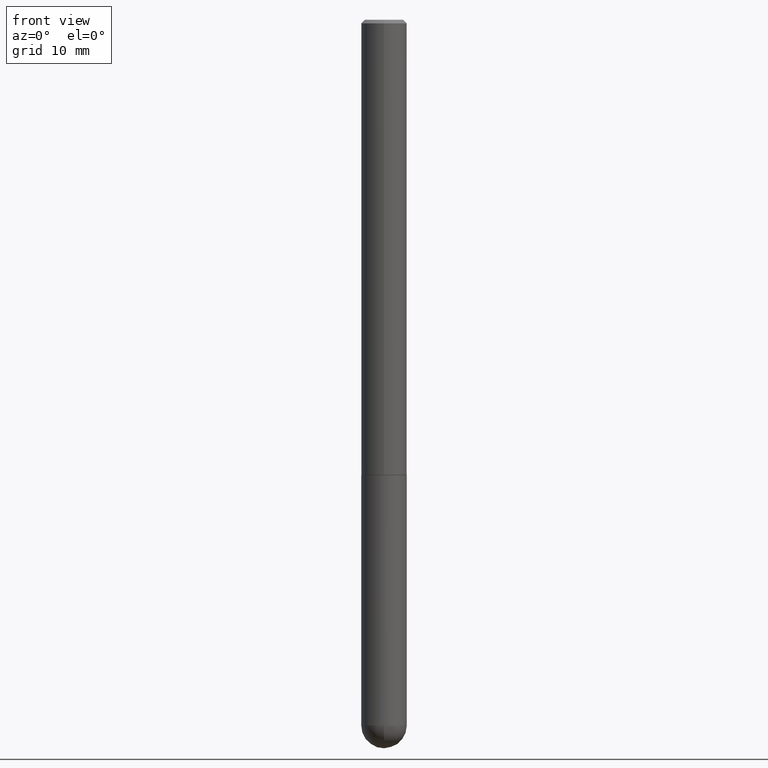
[diagram: clean part render]
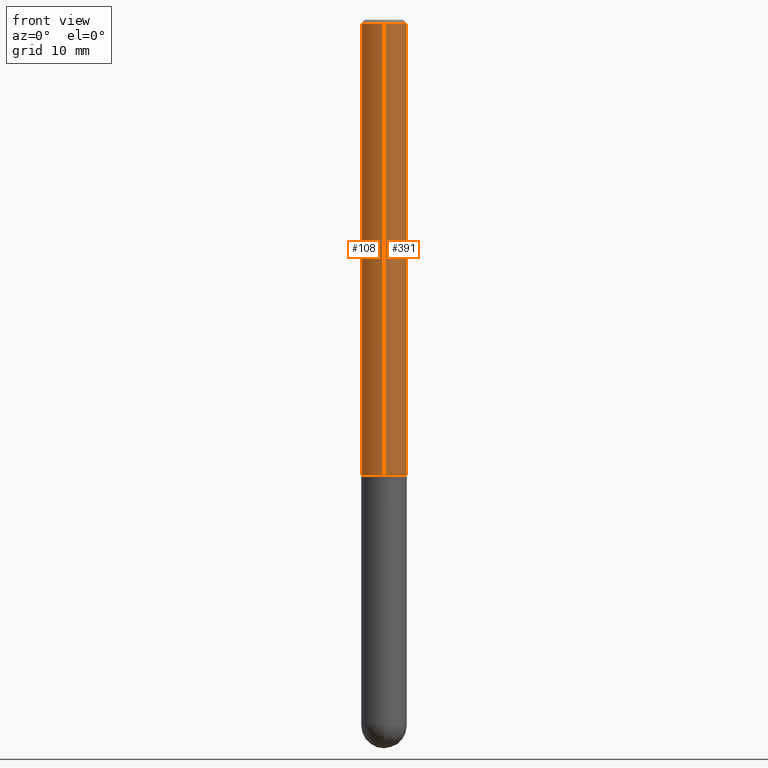
[diagram: same view with one multi-face feature highlighted, each face labeled with its STEP entity id]
A machine part, front view. The highlighted faces form ONE feature: a constant-radius fillet chain: 2 tangent blend faces with common blend radius 3.175 mm. The faces share edges in the B-rep.
Their STEP definitions:
[1] entity #108 (Cylinder):
#18 = ORIENTED_EDGE ( 'NONE', *, *, #161, .F. ) ;
#19 = LINE ( 'NONE', #86, #285 ) ;
#20 = ORIENTED_EDGE ( 'NONE', *, *, #348, .F. ) ;
#58 = VERTEX_POINT ( 'NONE', #381 ) ;
#86 = CARTESIAN_POINT ( 'NONE',  ( 8.881784197001262184E-16, 0.1250000000000001388, -4.364765541840276451E-16 ) ) ;
#92 = EDGE_CURVE ( 'NONE', #58, #143, #187, .T. ) ;
#96 = DIRECTION ( 'NONE',  ( -2.445237604041377810E-29, 3.491812433472216822E-15, 1.000000000000000000 ) ) ;
#108 = ADVANCED_FACE ( 'NONE', ( #159 ), #157, .T. ) ;
#129 = CARTESIAN_POINT ( 'NONE',  ( 4.890475208082762101E-31, -6.983624866944442273E-17, -0.02000000000000002470 ) ) ;
#133 = CARTESIAN_POINT ( 'NONE',  ( -8.575622497214408537E-16, -0.1250000000000000555, -0.01999999999999959102 ) ) ;
#143 = VERTEX_POINT ( 'NONE', #390 ) ;
#148 = EDGE_LOOP ( 'NONE', ( #20, #222, #170, #18 ) ) ;
#154 = VERTEX_POINT ( 'NONE', #165 ) ;
#157 = CYLINDRICAL_SURFACE ( 'NONE', #261, 0.1250000000000001388 ) ;
#159 = FACE_OUTER_BOUND ( 'NONE', #148, .T. ) ;
#161 = EDGE_CURVE ( 'NONE', #154, #242, #276, .T. ) ;
#165 = CARTESIAN_POINT ( 'NONE',  ( 8.728703347107837333E-16, 0.1249999999999999306, -0.02000000000000046185 ) ) ;
#170 = ORIENTED_EDGE ( 'NONE', *, *, #383, .T. ) ;
#184 = DIRECTION ( 'NONE',  ( -6.982962677686265922E-15, -1.000000000000000000, 4.370956789862810105E-15 ) ) ;
#187 = CIRCLE ( 'NONE', #214, 0.1250000000000003053 ) ;
#214 = AXIS2_PLACEMENT_3D ( 'NONE', #340, #96, #184 ) ;
#222 = ORIENTED_EDGE ( 'NONE', *, *, #92, .T. ) ;
#242 = VERTEX_POINT ( 'NONE', #133 ) ;
#261 = AXIS2_PLACEMENT_3D ( 'NONE', #303, #275, #345 ) ;
#275 = DIRECTION ( 'NONE',  ( -2.445237604041377810E-29, 3.491812433472216822E-15, 1.000000000000000000 ) ) ;
#276 = CIRCLE ( 'NONE', #410, 0.1250000000000000000 ) ;
#285 = VECTOR ( 'NONE', #355, 39.37007874015748143 ) ;
#294 = DIRECTION ( 'NONE',  ( -2.445237604041377530E-29, 3.491812433472216822E-15, 1.000000000000000000 ) ) ;
#303 = CARTESIAN_POINT ( 'NONE',  ( 0.000000000000000000, 0.000000000000000000, 0.000000000000000000 ) ) ;
#312 = DIRECTION ( 'NONE',  ( -2.445237604041377810E-29, 3.491812433472216822E-15, 1.000000000000000000 ) ) ;
#314 = DIRECTION ( 'NONE',  ( -6.982962677686265922E-15, -1.000000000000000000, 3.483106191921935554E-15 ) ) ;
#323 = CARTESIAN_POINT ( 'NONE',  ( -8.728703347107843249E-16, -0.1250000000000001388, 4.364765541840276451E-16 ) ) ;
#340 = CARTESIAN_POINT ( 'NONE',  ( 6.110648772499403782E-29, -8.726039271247070194E-15, -2.499000000000000110 ) ) ;
#345 = DIRECTION ( 'NONE',  ( -6.982962677686266711E-15, -1.000000000000000000, 3.491812433472217217E-15 ) ) ;
#348 = EDGE_CURVE ( 'NONE', #58, #154, #19, .T. ) ;
#355 = DIRECTION ( 'NONE',  ( -2.445237604041377530E-29, 3.491812433472216822E-15, 1.000000000000000000 ) ) ;
#360 = LINE ( 'NONE', #323, #388 ) ;
#381 = CARTESIAN_POINT ( 'NONE',  ( 8.881784197001575756E-16, 0.1249999999999915762, -2.499000000000000998 ) ) ;
#383 = EDGE_CURVE ( 'NONE', #143, #242, #360, .T. ) ;
#388 = VECTOR ( 'NONE', #294, 39.37007874015748143 ) ;
#390 = CARTESIAN_POINT ( 'NONE',  ( -8.728703347107242729E-16, -0.1250000000000090206, -2.498999999999999666 ) ) ;
#410 = AXIS2_PLACEMENT_3D ( 'NONE', #129, #312, #314 ) ;
[2] entity #391 (Cylinder):
#13 = DIRECTION ( 'NONE',  ( -2.445237604041377810E-29, 3.491812433472216822E-15, 1.000000000000000000 ) ) ;
#16 = CIRCLE ( 'NONE', #329, 0.1250000000000003053 ) ;
#19 = LINE ( 'NONE', #86, #285 ) ;
#40 = CIRCLE ( 'NONE', #173, 0.1250000000000000000 ) ;
#47 = CARTESIAN_POINT ( 'NONE',  ( 6.110648772499403782E-29, -8.726039271247070194E-15, -2.499000000000000110 ) ) ;
#58 = VERTEX_POINT ( 'NONE', #381 ) ;
#75 = DIRECTION ( 'NONE',  ( -6.982962677686265922E-15, -1.000000000000000000, 4.370956789862810105E-15 ) ) ;
#80 = ORIENTED_EDGE ( 'NONE', *, *, #383, .F. ) ;
#86 = CARTESIAN_POINT ( 'NONE',  ( 8.881784197001262184E-16, 0.1250000000000001388, -4.364765541840276451E-16 ) ) ;
#116 = ORIENTED_EDGE ( 'NONE', *, *, #130, .F. ) ;
#120 = DIRECTION ( 'NONE',  ( -2.445237604041377810E-29, 3.491812433472216822E-15, 1.000000000000000000 ) ) ;
#124 = CARTESIAN_POINT ( 'NONE',  ( 4.890475208082762101E-31, -6.983624866944442273E-17, -0.02000000000000002470 ) ) ;
#130 = EDGE_CURVE ( 'NONE', #242, #154, #40, .T. ) ;
#133 = CARTESIAN_POINT ( 'NONE',  ( -8.575622497214408537E-16, -0.1250000000000000555, -0.01999999999999959102 ) ) ;
#143 = VERTEX_POINT ( 'NONE', #390 ) ;
#145 = DIRECTION ( 'NONE',  ( -6.982962677686266711E-15, -1.000000000000000000, 3.491812433472217217E-15 ) ) ;
#154 = VERTEX_POINT ( 'NONE', #165 ) ;
#165 = CARTESIAN_POINT ( 'NONE',  ( 8.728703347107837333E-16, 0.1249999999999999306, -0.02000000000000046185 ) ) ;
#173 = AXIS2_PLACEMENT_3D ( 'NONE', #124, #120, #274 ) ;
#174 = FACE_OUTER_BOUND ( 'NONE', #268, .T. ) ;
#181 = AXIS2_PLACEMENT_3D ( 'NONE', #396, #13, #145 ) ;
#242 = VERTEX_POINT ( 'NONE', #133 ) ;
#260 = DIRECTION ( 'NONE',  ( -2.445237604041377810E-29, 3.491812433472216822E-15, 1.000000000000000000 ) ) ;
#268 = EDGE_LOOP ( 'NONE', ( #366, #342, #116, #80 ) ) ;
#274 = DIRECTION ( 'NONE',  ( -6.982962677686265922E-15, -1.000000000000000000, 3.483106191921935554E-15 ) ) ;
#285 = VECTOR ( 'NONE', #355, 39.37007874015748143 ) ;
#292 = CYLINDRICAL_SURFACE ( 'NONE', #181, 0.1250000000000001388 ) ;
#294 = DIRECTION ( 'NONE',  ( -2.445237604041377530E-29, 3.491812433472216822E-15, 1.000000000000000000 ) ) ;
#320 = EDGE_CURVE ( 'NONE', #143, #58, #16, .T. ) ;
#323 = CARTESIAN_POINT ( 'NONE',  ( -8.728703347107843249E-16, -0.1250000000000001388, 4.364765541840276451E-16 ) ) ;
#329 = AXIS2_PLACEMENT_3D ( 'NONE', #47, #260, #75 ) ;
#342 = ORIENTED_EDGE ( 'NONE', *, *, #348, .T. ) ;
#348 = EDGE_CURVE ( 'NONE', #58, #154, #19, .T. ) ;
#355 = DIRECTION ( 'NONE',  ( -2.445237604041377530E-29, 3.491812433472216822E-15, 1.000000000000000000 ) ) ;
#360 = LINE ( 'NONE', #323, #388 ) ;
#366 = ORIENTED_EDGE ( 'NONE', *, *, #320, .T. ) ;
#381 = CARTESIAN_POINT ( 'NONE',  ( 8.881784197001575756E-16, 0.1249999999999915762, -2.499000000000000998 ) ) ;
#383 = EDGE_CURVE ( 'NONE', #143, #242, #360, .T. ) ;
#388 = VECTOR ( 'NONE', #294, 39.37007874015748143 ) ;
#390 = CARTESIAN_POINT ( 'NONE',  ( -8.728703347107242729E-16, -0.1250000000000090206, -2.498999999999999666 ) ) ;
#391 = ADVANCED_FACE ( 'NONE', ( #174 ), #292, .T. ) ;
#396 = CARTESIAN_POINT ( 'NONE',  ( 0.000000000000000000, 0.000000000000000000, 0.000000000000000000 ) ) ;